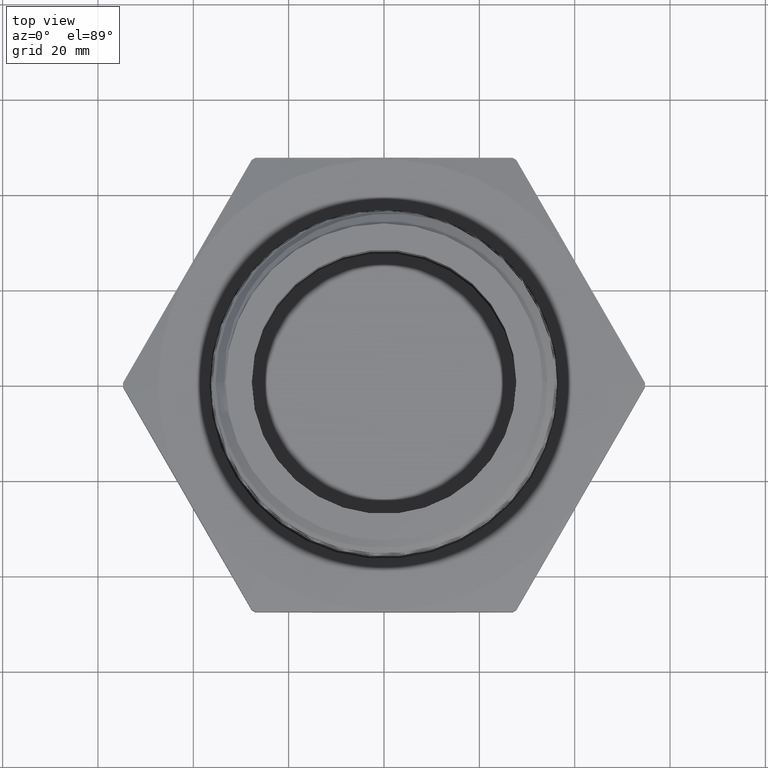
[diagram: clean part render]
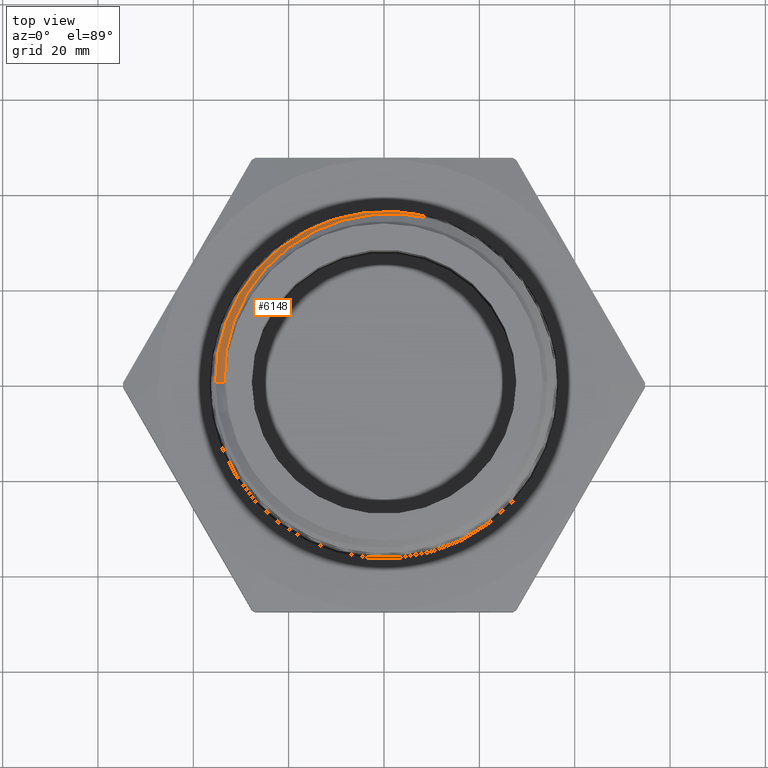
[diagram: same view with one face highlighted and labeled with its STEP entity id]
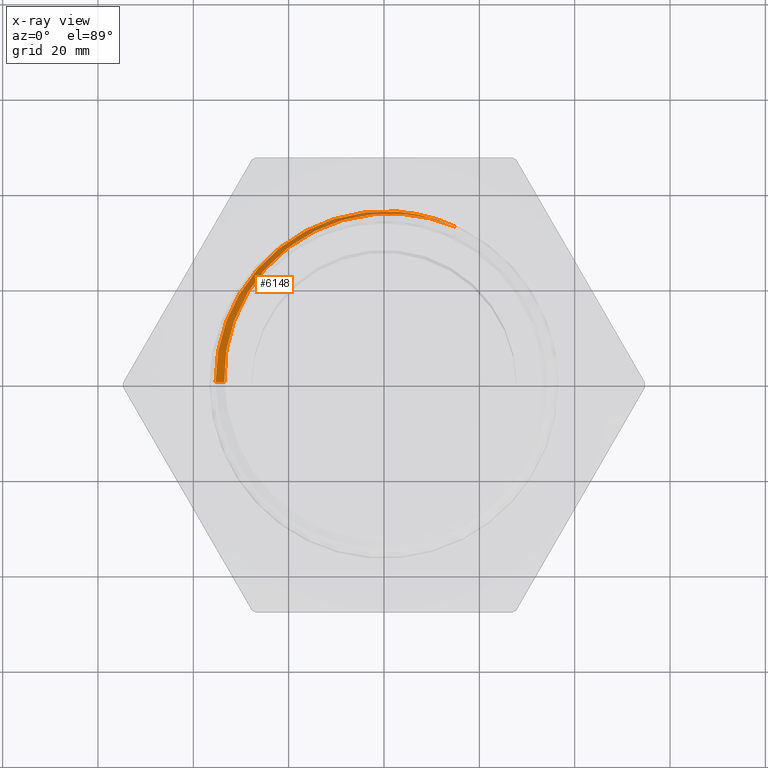
[diagram: x-ray of the same camera — body ghosted, the highlighted face saturated]
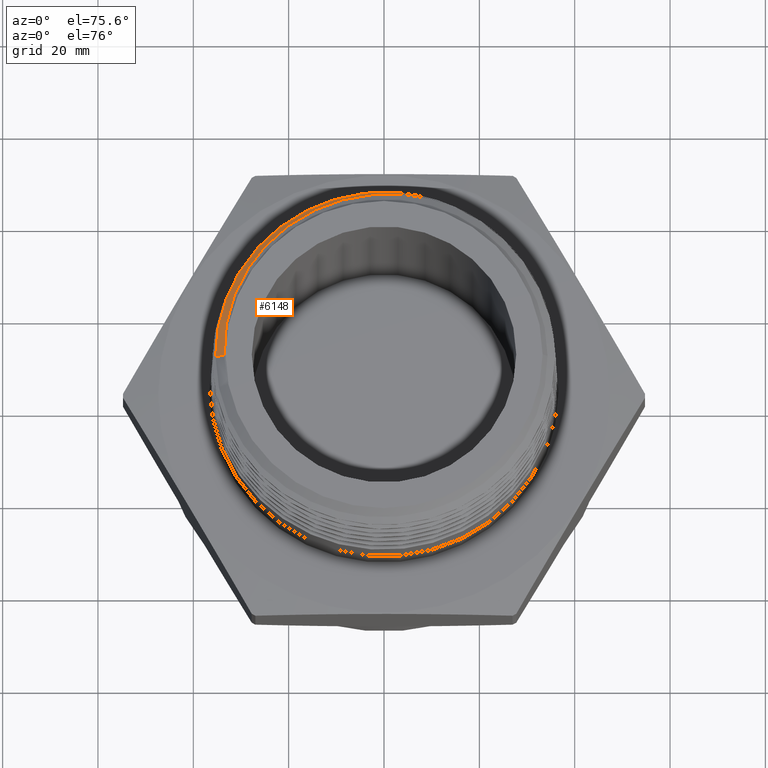
[diagram: same view with one face highlighted and labeled with its STEP entity id]
A machine part, top view. The second image highlights one B-rep face of the part: STEP entity #6148.
The next image is the same camera in x-ray: the body ghosted, the highlighted face saturated — about 0% of this face is hidden behind the body in this view.
A second angle (auxiliary view) of the same face is appended — the face is thin or edge-on in the first view.
In plain terms, the highlighted conical surface has half-angle 45 deg.
Its self-contained STEP definition (entity closure, byte-faithful):
#50 = CIRCLE ( 'NONE', #5612, 1.411885616282993100 ) ;
#500 = CARTESIAN_POINT ( 'NONE',  ( 0.0000000000000000000, 0.0000000000000000000, 1.627879383717008000 ) ) ;
#501 = DIRECTION ( 'NONE',  ( -0.0000000000000000000, -0.0000000000000000000, -1.000000000000000000 ) ) ;
#502 = DIRECTION ( 'NONE',  ( -1.000000000000000000, 0.0000000000000000000, 0.0000000000000000000 ) ) ;
#856 = B_SPLINE_CURVE_WITH_KNOTS ( 'NONE', 3,
 ( #7133, #7136, #7141, #7142, #7143, #7144, #7145, #7146, #7147, #7148, #7149, #7150, #7151, #7152, #7153, #7154, #7155, #7156, #7157, #7158, #7159, #7160, #7161, #7162, #7163, #7164, #7165, #7166, #7167, #7168, #7169, #7170, #7171, #7172, #7173, #7174, #7175, #7176, #7177, #7178, #7179, #7180 ),
 .UNSPECIFIED., .F., .F.,
 ( 4, 2, 2, 2, 2, 2, 2, 2, 2, 2, 2, 2, 2, 2, 2, 2, 2, 2, 2, 2, 4 ),
 ( 0.005450625266921482100, 0.007639660002945546100, 0.009828694738969610100, 0.01420676421101773800, 0.01639579894704180200, 0.01858483368306586300, 0.02296290315511398700, 0.02734097262716210900, 0.02953000736318616200, 0.03171904209921021900, 0.03609711157125832000, 0.04047518104330642700, 0.04485325051535453400, 0.04923131998740264100, 0.05142035472342669500, 0.05360938945945074900, 0.05798745893149885600, 0.06236552840354696300, 0.06455456313957101700, 0.06674359787559507000, 0.07549973681969129900 ),
 .UNSPECIFIED. ) ;
#857 = B_SPLINE_CURVE_WITH_KNOTS ( 'NONE', 3,
 ( #7137, #7140, #7181, #7182, #7183, #7184, #7185, #7186, #7187, #7188, #7189, #7190, #7191, #7192, #7193, #7194, #7195, #7196, #7197, #7198, #7199, #7200, #7201, #7202, #7203, #7204, #7205, #7206, #7207, #7208, #7209, #7210, #7211, #7212 ),
 .UNSPECIFIED., .F., .F.,
 ( 4, 2, 2, 2, 2, 2, 2, 2, 2, 2, 2, 2, 2, 2, 2, 2, 4 ),
 ( 0.0000000000000000000, 0.003689373995424416200, 0.007378747990848830700, 0.01475749598169766100, 0.01660218297940986900, 0.01844686997712207500, 0.02213624397254649100, 0.02951499196339531200, 0.03135967896110752200, 0.03320436595881973200, 0.03689373995424414400, 0.04058311394966856300, 0.04242780094738078000, 0.04427248794509299600, 0.05165123593594182100, 0.05534060993136624000, 0.05902998392679064500 ),
 .UNSPECIFIED. ) ;
#1265 = ORIENTED_EDGE ( 'NONE', *, *, #6546, .F. ) ;
#1266 = ORIENTED_EDGE ( 'NONE', *, *, #6583, .T. ) ;
#1267 = ORIENTED_EDGE ( 'NONE', *, *, #6492, .F. ) ;
#1268 = ORIENTED_EDGE ( 'NONE', *, *, #6584, .T. ) ;
#1977 = LINE ( 'NONE', #5279, #1979 ) ;
#1979 = VECTOR ( 'NONE', #5278, 39.37007874015748100 ) ;
#2098 = EDGE_LOOP ( 'NONE', ( #1265, #1266, #1267, #1268 ) ) ;
#2620 = FACE_OUTER_BOUND ( 'NONE', #2098, .T. ) ;
#2627 = CONICAL_SURFACE ( 'NONE', #5563, 1.543675872082448200, 0.7853981633974536100 ) ;
#4867 = VERTEX_POINT ( 'NONE', #6735 ) ;
#4868 = VERTEX_POINT ( 'NONE', #6736 ) ;
#4875 = VERTEX_POINT ( 'NONE', #6741 ) ;
#4878 = VERTEX_POINT ( 'NONE', #6744 ) ;
#5278 = DIRECTION ( 'NONE',  ( -0.7071067811865512400, 0.0000000000000000000, -0.7071067811865438000 ) ) ;
#5279 = CARTESIAN_POINT ( 'NONE',  ( -1.543675872082448200, 0.0000000000000000000, 1.496089127917554300 ) ) ;
#5563 = AXIS2_PLACEMENT_3D ( 'NONE', #7614, #7602, #7603 ) ;
#5612 = AXIS2_PLACEMENT_3D ( 'NONE', #500, #501, #502 ) ;
#6148 = ADVANCED_FACE ( 'NONE', ( #2620 ), #2627, .T. ) ;
#6492 = EDGE_CURVE ( 'NONE', #4878, #4875, #50, .T. ) ;
#6546 = EDGE_CURVE ( 'NONE', #4867, #4868, #1977, .T. ) ;
#6583 = EDGE_CURVE ( 'NONE', #4867, #4875, #856, .T. ) ;
#6584 = EDGE_CURVE ( 'NONE', #4878, #4868, #857, .T. ) ;
#6735 = CARTESIAN_POINT ( 'NONE',  ( -1.318848115848336700, -6.606837979511626700E-015, 1.720916884151662900 ) ) ;
#6736 = CARTESIAN_POINT ( 'NONE',  ( -1.390774161816868100, -8.057508279864616300E-013, 1.648990838183133100 ) ) ;
#6741 = CARTESIAN_POINT ( 'NONE',  ( 0.5955044932151205600, 1.280154440693547400, 1.627879383717008000 ) ) ;
#6744 = CARTESIAN_POINT ( 'NONE',  ( 0.1110834320269640800, 1.407508957199178300, 1.627879383717008000 ) ) ;
#7133 = CARTESIAN_POINT ( 'NONE',  ( -1.318848115848336700, -6.606837979511626700E-015, 1.720916884151662900 ) ) ;
#7136 = CARTESIAN_POINT ( 'NONE',  ( -1.319859813364431500, 0.02877256273564722500, 1.719905186635569500 ) ) ;
#7137 = CARTESIAN_POINT ( 'NONE',  ( 0.1110834320269640800, 1.407508957199178300, 1.627879383717008000 ) ) ;
#7140 = CARTESIAN_POINT ( 'NONE',  ( 0.06262183200733345600, 1.410892433095745300, 1.628319226869775500 ) ) ;
#7141 = CARTESIAN_POINT ( 'NONE',  ( -1.319928182703179000, 0.05757341682909272700, 1.718891161132808400 ) ) ;
#7142 = CARTESIAN_POINT ( 'NONE',  ( -1.318206154464409300, 0.1147634837975793800, 1.716881514856481500 ) ) ;
#7143 = CARTESIAN_POINT ( 'NONE',  ( -1.316418800484069600, 0.1432217717276491100, 1.715883433929541500 ) ) ;
#7144 = CARTESIAN_POINT ( 'NONE',  ( -1.308328972822835100, 0.2281937479847054000, 1.712902929167937800 ) ) ;
#7145 = CARTESIAN_POINT ( 'NONE',  ( -1.299319661429046800, 0.2843072880579499700, 1.710924221083714600 ) ) ;
#7146 = CARTESIAN_POINT ( 'NONE',  ( -1.280383055279802100, 0.3676751809660057700, 1.707941172791988600 ) ) ;
#7147 = CARTESIAN_POINT ( 'NONE',  ( -1.273161561194013700, 0.3953300246435706400, 1.706947098537011400 ) ) ;
#7148 = CARTESIAN_POINT ( 'NONE',  ( -1.256864639892626000, 0.4503654517198182900, 1.704955975349373300 ) ) ;
#7149 = CARTESIAN_POINT ( 'NONE',  ( -1.247767004244962700, 0.4777864061056195100, 1.703957358557625100 ) ) ;
#7150 = CARTESIAN_POINT ( 'NONE',  ( -1.218087047023429300, 0.5584746892741906400, 1.700978659517534900 ) ) ;
#7151 = CARTESIAN_POINT ( 'NONE',  ( -1.195028224132448600, 0.6105565331045461600, 1.699002185251950800 ) ) ;
#7152 = CARTESIAN_POINT ( 'NONE',  ( -1.142513202288504300, 0.7113770121054643300, 1.695084049150711800 ) ) ;
#7153 = CARTESIAN_POINT ( 'NONE',  ( -1.113067657877691000, 0.7601207437816198700, 1.693130283114934200 ) ) ;
#7154 = CARTESIAN_POINT ( 'NONE',  ( -1.064036753602847900, 0.8306930189482775200, 1.690170401280812100 ) ) ;
#7155 = CARTESIAN_POINT ( 'NONE',  ( -1.046811330357351200, 0.8538696578981623800, 1.689178498375780300 ) ) ;
#7156 = CARTESIAN_POINT ( 'NONE',  ( -1.011096080184014100, 0.8988375622664114300, 1.687211566293812300 ) ) ;
#7157 = CARTESIAN_POINT ( 'NONE',  ( -0.9926031604511330600, 0.9206474702119618000, 1.686235898347194800 ) ) ;
#7158 = CARTESIAN_POINT ( 'NONE',  ( -0.9352713994465872100, 0.9841103005846576500, 1.683314265088200900 ) ) ;
#7159 = CARTESIAN_POINT ( 'NONE',  ( -0.8945916617283707900, 1.023808829949148800, 1.681366652827671200 ) ) ;
#7160 = CARTESIAN_POINT ( 'NONE',  ( -0.8083326664475744000, 1.098005591256317600, 1.677492895697367100 ) ) ;
#7161 = CARTESIAN_POINT ( 'NONE',  ( -0.7626879163054659500, 1.132554507819193900, 1.675558068641418400 ) ) ;
#7162 = CARTESIAN_POINT ( 'NONE',  ( -0.6666412381368644900, 1.196103320700753900, 1.671641586384521800 ) ) ;
#7163 = CARTESIAN_POINT ( 'NONE',  ( -0.6171095476508642300, 1.224519276181813800, 1.669713247318227900 ) ) ;
#7164 = CARTESIAN_POINT ( 'NONE',  ( -0.5151558825184581200, 1.274912995197858800, 1.665880404372893600 ) ) ;
#7165 = CARTESIAN_POINT ( 'NONE',  ( -0.4627408349104189000, 1.296904818661441400, 1.663959290559895200 ) ) ;
#7166 = CARTESIAN_POINT ( 'NONE',  ( -0.3819367931880039400, 1.325031954963625800, 1.661079779959818500 ) ) ;
#7167 = CARTESIAN_POINT ( 'NONE',  ( -0.3546373417459836600, 1.333594939090024800, 1.660120652777275600 ) ) ;
#7168 = CARTESIAN_POINT ( 'NONE',  ( -0.2992958620079875800, 1.349065788249764300, 1.658196350552027000 ) ) ;
#7169 = CARTESIAN_POINT ( 'NONE',  ( -0.2712875191209984700, 1.355957480864389500, 1.657231373925552400 ) ) ;
#7170 = CARTESIAN_POINT ( 'NONE',  ( -0.1873097167641788200, 1.373886812201897500, 1.654349401751189900 ) ) ;
#7171 = CARTESIAN_POINT ( 'NONE',  ( -0.1310095025178158200, 1.382286848940115000, 1.652445548908595400 ) ) ;
#7172 = CARTESIAN_POINT ( 'NONE',  ( -0.01779406070447828200, 1.392147101255114300, 1.648662912803243700 ) ) ;
#7173 = CARTESIAN_POINT ( 'NONE',  ( 0.03911926239918781000, 1.393622837539516800, 1.646768358570708200 ) ) ;
#7174 = CARTESIAN_POINT ( 'NONE',  ( 0.1249569006990633900, 1.390545684720891500, 1.643909453538999300 ) ) ;
#7175 = CARTESIAN_POINT ( 'NONE',  ( 0.1537456921742104400, 1.388622313064910900, 1.642952351974720700 ) ) ;
#7176 = CARTESIAN_POINT ( 'NONE',  ( 0.2109171394610212200, 1.383017842960574000, 1.641051197556748100 ) ) ;
#7177 = CARTESIAN_POINT ( 'NONE',  ( 0.2392895911092009800, 1.379345697729001700, 1.640107441717070200 ) ) ;
#7178 = CARTESIAN_POINT ( 'NONE',  ( 0.3801139290975803500, 1.356755817604847300, 1.635390249825500600 ) ) ;
#7179 = CARTESIAN_POINT ( 'NONE',  ( 0.4894877767546447800, 1.325289238102444600, 1.631671418718694700 ) ) ;
#7180 = CARTESIAN_POINT ( 'NONE',  ( 0.5955044932151205600, 1.280154440693547400, 1.627879383717008000 ) ) ;
#7181 = CARTESIAN_POINT ( 'NONE',  ( 0.01419189054436671400, 1.411768232765920200, 1.628756094727439800 ) ) ;
#7182 = CARTESIAN_POINT ( 'NONE',  ( -0.08260499932334394700, 1.408539339242680600, 1.629636695886628400 ) ) ;
#7183 = CARTESIAN_POINT ( 'NONE',  ( -0.1311694949804297100, 1.404399623200921900, 1.630079701214862000 ) ) ;
#7184 = CARTESIAN_POINT ( 'NONE',  ( -0.2746737338307321300, 1.384698705803835600, 1.631392968144114800 ) ) ;
#7185 = CARTESIAN_POINT ( 'NONE',  ( -0.3677743056023558600, 1.361998276552231600, 1.632262624330918000 ) ) ;
#7186 = CARTESIAN_POINT ( 'NONE',  ( -0.4809823823118523600, 1.321827057531588500, 1.633353368262301800 ) ) ;
#7187 = CARTESIAN_POINT ( 'NONE',  ( -0.5034640407721164800, 1.313197166437322500, 1.633571752666180400 ) ) ;
#7188 = CARTESIAN_POINT ( 'NONE',  ( -0.5481016830928444600, 1.294724709959070600, 1.634011059886211900 ) ) ;
#7189 = CARTESIAN_POINT ( 'NONE',  ( -0.5703196983048686200, 1.284851423390169600, 1.634232898548684900 ) ) ;
#7190 = CARTESIAN_POINT ( 'NONE',  ( -0.6359694390411778600, 1.253613555663945600, 1.634896652669841900 ) ) ;
#7191 = CARTESIAN_POINT ( 'NONE',  ( -0.6783094567351152200, 1.230698724602024900, 1.635334958943025900 ) ) ;
#7192 = CARTESIAN_POINT ( 'NONE',  ( -0.8011818661947218700, 1.155878611589878900, 1.636643327082773600 ) ) ;
#7193 = CARTESIAN_POINT ( 'NONE',  ( -0.8776041598447442700, 1.097952881339270500, 1.637517572226902900 ) ) ;
#7194 = CARTESIAN_POINT ( 'NONE',  ( -0.9660426024935566700, 1.015161230376757200, 1.638621306584701300 ) ) ;
#7195 = CARTESIAN_POINT ( 'NONE',  ( -0.9833596757791326400, 0.9980832037751220500, 1.638842890477456600 ) ) ;
#7196 = CARTESIAN_POINT ( 'NONE',  ( -1.016870892919113300, 0.9632765910289533600, 1.639284858393873900 ) ) ;
#7197 = CARTESIAN_POINT ( 'NONE',  ( -1.033118160472947800, 0.9455000626744194400, 1.639505602395207900 ) ) ;
#7198 = CARTESIAN_POINT ( 'NONE',  ( -1.080361244243619700, 0.8910701091378792100, 1.640165817476871200 ) ) ;
#7199 = CARTESIAN_POINT ( 'NONE',  ( -1.109862697595407100, 0.8533195069737674600, 1.640602687575737100 ) ) ;
#7200 = CARTESIAN_POINT ( 'NONE',  ( -1.164908725908072800, 0.7749132088216019700, 1.641477258183006800 ) ) ;
#7201 = CARTESIAN_POINT ( 'NONE',  ( -1.190451295317650500, 0.7342560708083127900, 1.641917626353218500 ) ) ;
#7202 = CARTESIAN_POINT ( 'NONE',  ( -1.225727635943150600, 0.6710402902726382300, 1.642581739766687100 ) ) ;
#7203 = CARTESIAN_POINT ( 'NONE',  ( -1.237000425096701300, 0.6495525982582054400, 1.642803985434916600 ) ) ;
#7204 = CARTESIAN_POINT ( 'NONE',  ( -1.258411839290936000, 0.6060099529228981700, 1.643247951435784700 ) ) ;
#7205 = CARTESIAN_POINT ( 'NONE',  ( -1.268501178325476500, 0.5840613884656923300, 1.643468605719057100 ) ) ;
#7206 = CARTESIAN_POINT ( 'NONE',  ( -1.315933895219109500, 0.4734519143316032200, 1.644569836544836000 ) ) ;
#7207 = CARTESIAN_POINT ( 'NONE',  ( -1.344330039855183600, 0.3822182820844302600, 1.645444571780560800 ) ) ;
#7208 = CARTESIAN_POINT ( 'NONE',  ( -1.372779545797246700, 0.2413007608217618300, 1.646763354320494900 ) ) ;
#7209 = CARTESIAN_POINT ( 'NONE',  ( -1.379883989246292600, 0.1936386770352888600, 1.647207807402275600 ) ) ;
#7210 = CARTESIAN_POINT ( 'NONE',  ( -1.389134843464144800, 0.09691160801395087800, 1.648101518145489200 ) ) ;
#7211 = CARTESIAN_POINT ( 'NONE',  ( -1.391220386171259800, 0.04848647378454073300, 1.648544613828768900 ) ) ;
#7212 = CARTESIAN_POINT ( 'NONE',  ( -1.390774161816868100, -8.057508279864616300E-013, 1.648990838183133100 ) ) ;
#7602 = DIRECTION ( 'NONE',  ( -0.0000000000000000000, -0.0000000000000000000, -1.000000000000000000 ) ) ;
#7603 = DIRECTION ( 'NONE',  ( -1.000000000000000000, 0.0000000000000000000, 0.0000000000000000000 ) ) ;
#7614 = CARTESIAN_POINT ( 'NONE',  ( 0.0000000000000000000, 0.0000000000000000000, 1.496089127917554300 ) ) ;